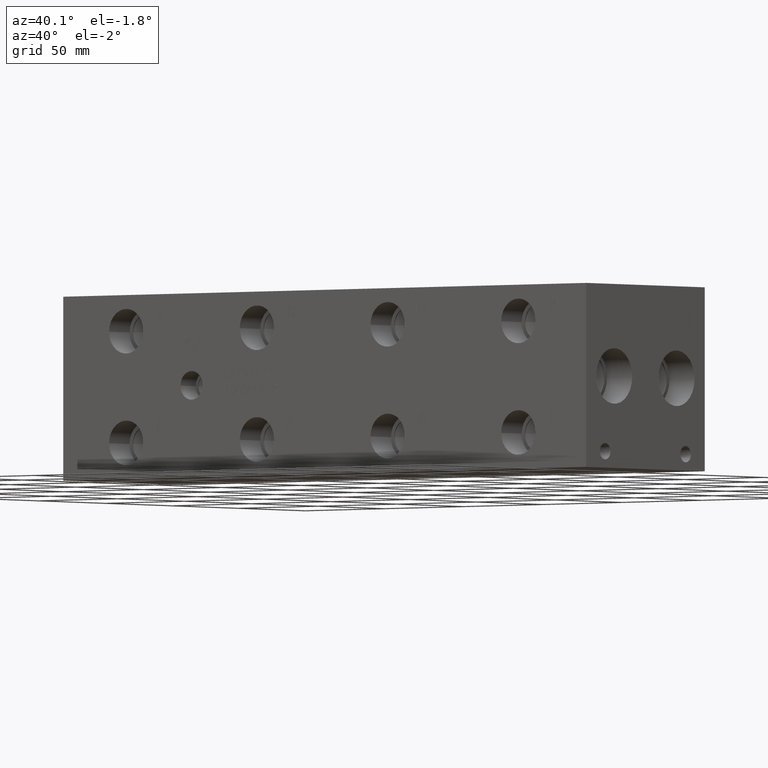
[diagram: clean part render]
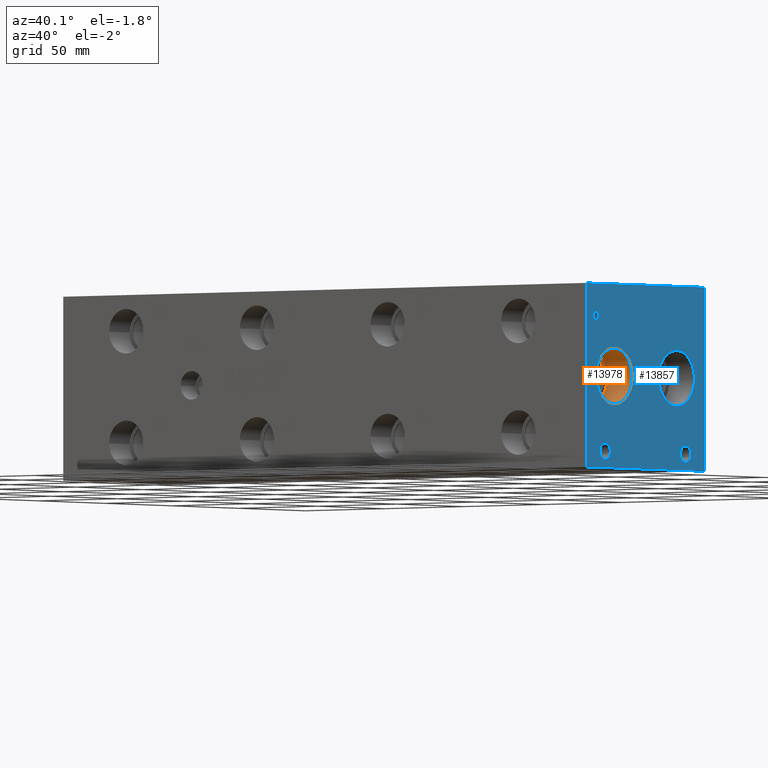
[diagram: same view with the hole feature highlighted: cylindrical wall and planar end face, labeled with their STEP entity ids]
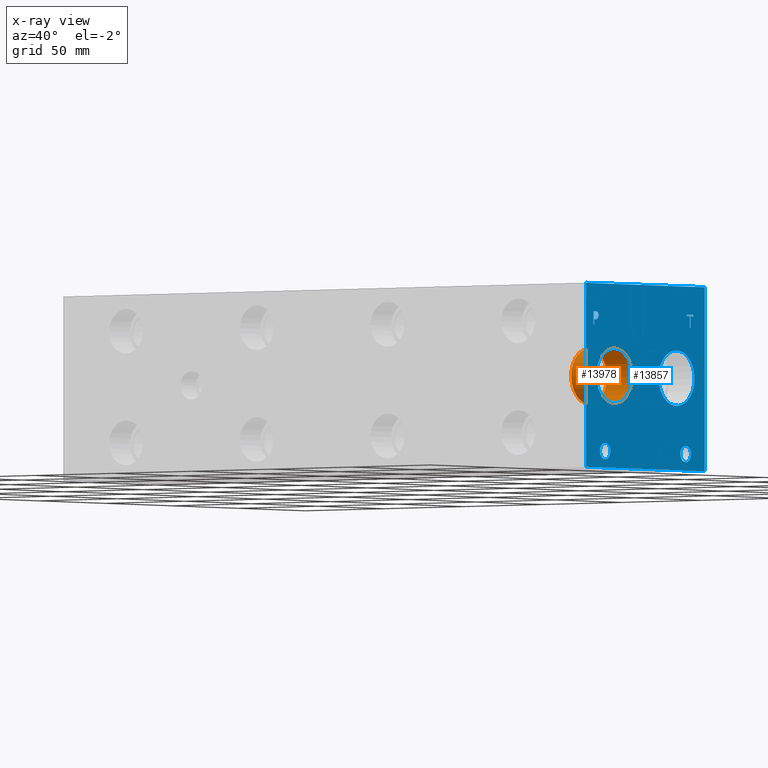
[diagram: x-ray of the same camera — body ghosted, the hole faces saturated]
A machine part, auxiliary view. The highlighted faces form one hole feature of diameter 26.924 mm: the cylindrical wall (entity #13978, orange) and its adjacent planar end face (entity #13857, blue) — they share a circular edge in the B-rep.
The next image is the same camera in x-ray (body ghosted, the hole faces saturated) — the bore reads through the body.
Wall:
#24=CYLINDRICAL_SURFACE('',#14608,13.462);
#339=CIRCLE('',#14480,13.462);
#340=CIRCLE('',#14481,13.462);
#380=CIRCLE('',#14605,13.462);
#381=CIRCLE('',#14606,13.462);
#1678=FACE_OUTER_BOUND('',#2483,.T.);
#2483=EDGE_LOOP('',(#11692,#11693,#11694,#11695,#11696,#11697));
#3868=LINE('',#23488,#5163);
#5163=VECTOR('',#17105,13.462);
#6170=VERTEX_POINT('',#22462);
#6171=VERTEX_POINT('',#22463);
#6355=VERTEX_POINT('',#23481);
#6356=VERTEX_POINT('',#23482);
#7937=EDGE_CURVE('',#6170,#6171,#339,.T.);
#7938=EDGE_CURVE('',#6171,#6170,#340,.T.);
#8219=EDGE_CURVE('',#6355,#6356,#380,.T.);
#8220=EDGE_CURVE('',#6356,#6355,#381,.T.);
#8222=EDGE_CURVE('',#6171,#6356,#3868,.T.);
#11692=ORIENTED_EDGE('',*,*,#7937,.F.);
#11693=ORIENTED_EDGE('',*,*,#7938,.F.);
#11694=ORIENTED_EDGE('',*,*,#8222,.T.);
#11695=ORIENTED_EDGE('',*,*,#8219,.F.);
#11696=ORIENTED_EDGE('',*,*,#8220,.F.);
#11697=ORIENTED_EDGE('',*,*,#8222,.F.);
#13978=ADVANCED_FACE('',(#1678),#24,.F.);
#14480=AXIS2_PLACEMENT_3D('',#22464,#16666,#16667);
#14481=AXIS2_PLACEMENT_3D('',#22465,#16668,#16669);
#14605=AXIS2_PLACEMENT_3D('',#23483,#17097,#17098);
#14606=AXIS2_PLACEMENT_3D('',#23484,#17099,#17100);
#14608=AXIS2_PLACEMENT_3D('',#23487,#17103,#17104);
#16666=DIRECTION('center_axis',(-1.,0.,0.));
#16667=DIRECTION('ref_axis',(0.,1.,0.));
#16668=DIRECTION('center_axis',(-1.,0.,0.));
#16669=DIRECTION('ref_axis',(0.,1.,0.));
#17097=DIRECTION('center_axis',(1.,0.,0.));
#17098=DIRECTION('ref_axis',(0.,1.,0.));
#17099=DIRECTION('center_axis',(1.,0.,0.));
#17100=DIRECTION('ref_axis',(0.,1.,0.));
#17103=DIRECTION('center_axis',(1.,0.,0.));
#17104=DIRECTION('ref_axis',(0.,1.,0.));
#17105=DIRECTION('',(-1.,0.,0.));
#22462=CARTESIAN_POINT('',(330.2,34.544,44.45));
#22463=CARTESIAN_POINT('',(330.2,7.62,44.45));
#22464=CARTESIAN_POINT('Origin',(330.2,21.082,44.45));
#22465=CARTESIAN_POINT('Origin',(330.2,21.082,44.45));
#23481=CARTESIAN_POINT('',(314.3504,34.544,44.45));
#23482=CARTESIAN_POINT('',(314.3504,7.62,44.45));
#23483=CARTESIAN_POINT('Origin',(314.3504,21.082,44.45));
#23484=CARTESIAN_POINT('Origin',(314.3504,21.082,44.45));
#23487=CARTESIAN_POINT('Origin',(322.2752,21.082,44.45));
#23488=CARTESIAN_POINT('',(322.2752,7.62,44.45));
End face:
#337=CIRCLE('',#14478,13.462);
#338=CIRCLE('',#14479,13.462);
#339=CIRCLE('',#14480,13.462);
#340=CIRCLE('',#14481,13.462);
#341=CIRCLE('',#14482,3.9624);
#342=CIRCLE('',#14483,3.9624);
#343=CIRCLE('',#14484,3.9624);
#344=CIRCLE('',#14485,3.9624);
#894=B_SPLINE_CURVE_WITH_KNOTS('',2,(#22355,#22356,#22357,#22358),
 .UNSPECIFIED.,.F.,.F.,(3,1,3),(0.,1.,2.),.UNSPECIFIED.);
#896=B_SPLINE_CURVE_WITH_KNOTS('',2,(#22376,#22377,#22378,#22379),
 .UNSPECIFIED.,.F.,.F.,(3,1,3),(0.,1.,2.),.UNSPECIFIED.);
#898=B_SPLINE_CURVE_WITH_KNOTS('',2,(#22425,#22426,#22427,#22428),
 .UNSPECIFIED.,.F.,.F.,(3,1,3),(0.,1.,2.),.UNSPECIFIED.);
#900=B_SPLINE_CURVE_WITH_KNOTS('',2,(#22443,#22444,#22445,#22446),
 .UNSPECIFIED.,.F.,.F.,(3,1,3),(0.,1.,2.),.UNSPECIFIED.);
#1016=FACE_BOUND('',#2338,.T.);
#1017=FACE_BOUND('',#2339,.T.);
#1018=FACE_BOUND('',#2340,.T.);
#1019=FACE_BOUND('',#2341,.T.);
#1020=FACE_BOUND('',#2342,.T.);
#1021=FACE_BOUND('',#2343,.T.);
#1557=FACE_OUTER_BOUND('',#2337,.T.);
#2337=EDGE_LOOP('',(#11077,#11078,#11079,#11080));
#2338=EDGE_LOOP('',(#11081,#11082,#11083,#11084,#11085,#11086,#11087,#11088));
#2339=EDGE_LOOP('',(#11089,#11090));
#2340=EDGE_LOOP('',(#11091,#11092));
#2341=EDGE_LOOP('',(#11093,#11094));
#2342=EDGE_LOOP('',(#11095,#11096));
#2343=EDGE_LOOP('',(#11097,#11098,#11099,#11100,#11101,#11102,#11103,#11104,
#11105));
#2724=LINE('',#18051,#4019);
#3604=LINE('',#22156,#4899);
#3608=LINE('',#22164,#4903);
#3611=LINE('',#22170,#4906);
#3614=LINE('',#22176,#4909);
#3617=LINE('',#22182,#4912);
#3620=LINE('',#22188,#4915);
#3623=LINE('',#22194,#4918);
#3626=LINE('',#22199,#4921);
#3668=LINE('',#22388,#4963);
#3671=LINE('',#22394,#4966);
#3674=LINE('',#22400,#4969);
#3677=LINE('',#22406,#4972);
#3680=LINE('',#22412,#4975);
#3684=LINE('',#22454,#4979);
#3685=LINE('',#22456,#4980);
#3686=LINE('',#22457,#4981);
#4019=VECTOR('',#15049,10.);
#4899=VECTOR('',#16525,10.);
#4903=VECTOR('',#16531,10.);
#4906=VECTOR('',#16536,10.);
#4909=VECTOR('',#16541,10.);
#4912=VECTOR('',#16546,10.);
#4915=VECTOR('',#16551,10.);
#4918=VECTOR('',#16556,10.);
#4921=VECTOR('',#16561,10.);
#4963=VECTOR('',#16631,10.);
#4966=VECTOR('',#16636,10.);
#4969=VECTOR('',#16641,10.);
#4972=VECTOR('',#16646,10.);
#4975=VECTOR('',#16651,10.);
#4979=VECTOR('',#16659,10.);
#4980=VECTOR('',#16660,10.);
#4981=VECTOR('',#16661,10.);
#5303=VERTEX_POINT('',#18048);
#5304=VERTEX_POINT('',#18050);
#6102=VERTEX_POINT('',#22154);
#6103=VERTEX_POINT('',#22155);
#6106=VERTEX_POINT('',#22163);
#6108=VERTEX_POINT('',#22169);
#6110=VERTEX_POINT('',#22175);
#6112=VERTEX_POINT('',#22181);
#6114=VERTEX_POINT('',#22187);
#6116=VERTEX_POINT('',#22193);
#6148=VERTEX_POINT('',#22353);
#6149=VERTEX_POINT('',#22354);
#6152=VERTEX_POINT('',#22375);
#6154=VERTEX_POINT('',#22387);
#6156=VERTEX_POINT('',#22393);
#6158=VERTEX_POINT('',#22399);
#6160=VERTEX_POINT('',#22405);
#6162=VERTEX_POINT('',#22411);
#6164=VERTEX_POINT('',#22424);
#6166=VERTEX_POINT('',#22453);
#6167=VERTEX_POINT('',#22455);
#6168=VERTEX_POINT('',#22458);
#6169=VERTEX_POINT('',#22459);
#6170=VERTEX_POINT('',#22462);
#6171=VERTEX_POINT('',#22463);
#6172=VERTEX_POINT('',#22466);
#6173=VERTEX_POINT('',#22467);
#6174=VERTEX_POINT('',#22470);
#6175=VERTEX_POINT('',#22471);
#6666=EDGE_CURVE('',#5303,#5304,#2724,.T.);
#7836=EDGE_CURVE('',#6102,#6103,#3604,.T.);
#7840=EDGE_CURVE('',#6106,#6102,#3608,.T.);
#7843=EDGE_CURVE('',#6108,#6106,#3611,.T.);
#7846=EDGE_CURVE('',#6110,#6108,#3614,.T.);
#7849=EDGE_CURVE('',#6112,#6110,#3617,.T.);
#7852=EDGE_CURVE('',#6114,#6112,#3620,.T.);
#7855=EDGE_CURVE('',#6116,#6114,#3623,.T.);
#7858=EDGE_CURVE('',#6103,#6116,#3626,.T.);
#7905=EDGE_CURVE('',#6148,#6149,#894,.T.);
#7909=EDGE_CURVE('',#6152,#6148,#896,.T.);
#7912=EDGE_CURVE('',#6154,#6152,#3668,.T.);
#7915=EDGE_CURVE('',#6156,#6154,#3671,.T.);
#7918=EDGE_CURVE('',#6158,#6156,#3674,.T.);
#7921=EDGE_CURVE('',#6160,#6158,#3677,.T.);
#7924=EDGE_CURVE('',#6162,#6160,#3680,.T.);
#7927=EDGE_CURVE('',#6164,#6162,#898,.T.);
#7930=EDGE_CURVE('',#6149,#6164,#900,.T.);
#7932=EDGE_CURVE('',#5303,#6166,#3684,.T.);
#7933=EDGE_CURVE('',#6166,#6167,#3685,.T.);
#7934=EDGE_CURVE('',#5304,#6167,#3686,.T.);
#7935=EDGE_CURVE('',#6168,#6169,#337,.T.);
#7936=EDGE_CURVE('',#6169,#6168,#338,.T.);
#7937=EDGE_CURVE('',#6170,#6171,#339,.T.);
#7938=EDGE_CURVE('',#6171,#6170,#340,.T.);
#7939=EDGE_CURVE('',#6172,#6173,#341,.T.);
#7940=EDGE_CURVE('',#6173,#6172,#342,.T.);
#7941=EDGE_CURVE('',#6174,#6175,#343,.T.);
#7942=EDGE_CURVE('',#6175,#6174,#344,.T.);
#11077=ORIENTED_EDGE('',*,*,#7932,.T.);
#11078=ORIENTED_EDGE('',*,*,#7933,.T.);
#11079=ORIENTED_EDGE('',*,*,#7934,.F.);
#11080=ORIENTED_EDGE('',*,*,#6666,.F.);
#11081=ORIENTED_EDGE('',*,*,#7836,.T.);
#11082=ORIENTED_EDGE('',*,*,#7858,.T.);
#11083=ORIENTED_EDGE('',*,*,#7855,.T.);
#11084=ORIENTED_EDGE('',*,*,#7852,.T.);
#11085=ORIENTED_EDGE('',*,*,#7849,.T.);
#11086=ORIENTED_EDGE('',*,*,#7846,.T.);
#11087=ORIENTED_EDGE('',*,*,#7843,.T.);
#11088=ORIENTED_EDGE('',*,*,#7840,.T.);
#11089=ORIENTED_EDGE('',*,*,#7935,.T.);
#11090=ORIENTED_EDGE('',*,*,#7936,.T.);
#11091=ORIENTED_EDGE('',*,*,#7937,.T.);
#11092=ORIENTED_EDGE('',*,*,#7938,.T.);
#11093=ORIENTED_EDGE('',*,*,#7939,.T.);
#11094=ORIENTED_EDGE('',*,*,#7940,.T.);
#11095=ORIENTED_EDGE('',*,*,#7941,.T.);
#11096=ORIENTED_EDGE('',*,*,#7942,.T.);
#11097=ORIENTED_EDGE('',*,*,#7905,.T.);
#11098=ORIENTED_EDGE('',*,*,#7930,.T.);
#11099=ORIENTED_EDGE('',*,*,#7927,.T.);
#11100=ORIENTED_EDGE('',*,*,#7924,.T.);
#11101=ORIENTED_EDGE('',*,*,#7921,.T.);
#11102=ORIENTED_EDGE('',*,*,#7918,.T.);
#11103=ORIENTED_EDGE('',*,*,#7915,.T.);
#11104=ORIENTED_EDGE('',*,*,#7912,.T.);
#11105=ORIENTED_EDGE('',*,*,#7909,.T.);
#12765=PLANE('',#14477);
#13857=ADVANCED_FACE('',(#1557,#1016,#1017,#1018,#1019,#1020,#1021),#12765,
 .T.);
#14477=AXIS2_PLACEMENT_3D('',#22452,#16657,#16658);
#14478=AXIS2_PLACEMENT_3D('',#22460,#16662,#16663);
#14479=AXIS2_PLACEMENT_3D('',#22461,#16664,#16665);
#14480=AXIS2_PLACEMENT_3D('',#22464,#16666,#16667);
#14481=AXIS2_PLACEMENT_3D('',#22465,#16668,#16669);
#14482=AXIS2_PLACEMENT_3D('',#22468,#16670,#16671);
#14483=AXIS2_PLACEMENT_3D('',#22469,#16672,#16673);
#14484=AXIS2_PLACEMENT_3D('',#22472,#16674,#16675);
#14485=AXIS2_PLACEMENT_3D('',#22473,#16676,#16677);
#15049=DIRECTION('',(0.,0.,1.));
#16525=DIRECTION('',(0.,-1.,0.));
#16531=DIRECTION('',(0.,0.,-1.));
#16536=DIRECTION('',(0.,-1.,0.));
#16541=DIRECTION('',(0.,0.,-1.));
#16546=DIRECTION('',(0.,1.,0.));
#16551=DIRECTION('',(0.,0.,1.));
#16556=DIRECTION('',(0.,-1.,0.));
#16561=DIRECTION('',(0.,0.,1.));
#16631=DIRECTION('',(0.,1.,0.));
#16636=DIRECTION('',(0.,0.,1.));
#16641=DIRECTION('',(0.,-1.,0.));
#16646=DIRECTION('',(0.,0.,-1.));
#16651=DIRECTION('',(0.,-1.,0.));
#16657=DIRECTION('center_axis',(1.,0.,0.));
#16658=DIRECTION('ref_axis',(0.,1.,0.));
#16659=DIRECTION('',(0.,1.,0.));
#16660=DIRECTION('',(0.,0.,1.));
#16661=DIRECTION('',(0.,1.,0.));
#16662=DIRECTION('center_axis',(-1.,0.,0.));
#16663=DIRECTION('ref_axis',(0.,1.,0.));
#16664=DIRECTION('center_axis',(-1.,0.,0.));
#16665=DIRECTION('ref_axis',(0.,1.,0.));
#16666=DIRECTION('center_axis',(-1.,0.,0.));
#16667=DIRECTION('ref_axis',(0.,1.,0.));
#16668=DIRECTION('center_axis',(-1.,0.,0.));
#16669=DIRECTION('ref_axis',(0.,1.,0.));
#16670=DIRECTION('center_axis',(-1.,0.,0.));
#16671=DIRECTION('ref_axis',(0.,1.,0.));
#16672=DIRECTION('center_axis',(-1.,0.,0.));
#16673=DIRECTION('ref_axis',(0.,1.,0.));
#16674=DIRECTION('center_axis',(-1.,0.,0.));
#16675=DIRECTION('ref_axis',(0.,1.,0.));
#16676=DIRECTION('center_axis',(-1.,0.,0.));
#16677=DIRECTION('ref_axis',(0.,1.,0.));
#18048=CARTESIAN_POINT('',(330.2,0.,0.));
#18050=CARTESIAN_POINT('',(330.2,0.,88.9));
#18051=CARTESIAN_POINT('',(330.2,0.,0.));
#22154=CARTESIAN_POINT('',(330.2,78.375415271453,69.05625));
#22155=CARTESIAN_POINT('',(330.2,77.5314930799135,69.05625));
#22156=CARTESIAN_POINT('',(330.2,39.1877076357265,69.05625));
#22163=CARTESIAN_POINT('',(330.2,78.375415271453,74.6549533194816));
#22164=CARTESIAN_POINT('',(330.2,78.375415271453,37.3274766597408));
#22169=CARTESIAN_POINT('',(330.2,80.5058042183881,74.6549533194816));
#22170=CARTESIAN_POINT('',(330.2,40.252902109194,74.6549533194816));
#22175=CARTESIAN_POINT('',(330.2,80.5058042183881,75.4062499046326));
#22176=CARTESIAN_POINT('',(330.2,80.5058042183881,37.7031249523163));
#22181=CARTESIAN_POINT('',(330.2,75.4011041329784,75.4062499046326));
#22182=CARTESIAN_POINT('',(330.2,37.7005520664892,75.4062499046326));
#22187=CARTESIAN_POINT('',(330.2,75.4011041329784,74.6549533194816));
#22188=CARTESIAN_POINT('',(330.2,75.4011041329784,37.3274766597408));
#22193=CARTESIAN_POINT('',(330.2,77.5314930799135,74.6549533194816));
#22194=CARTESIAN_POINT('',(330.2,38.7657465399567,74.6549533194816));
#22199=CARTESIAN_POINT('',(330.2,77.5314930799135,34.528125));
#22353=CARTESIAN_POINT('',(330.2,8.66306720235939,75.0100181439707));
#22354=CARTESIAN_POINT('',(330.2,9.41950965453199,73.491987372604));
#22355=CARTESIAN_POINT('Ctrl Pts',(330.2,8.66306720235939,75.0100181439707));
#22356=CARTESIAN_POINT('Ctrl Pts',(330.2,9.01813202684857,74.7681623939564));
#22357=CARTESIAN_POINT('Ctrl Pts',(330.2,9.41950965453199,74.0220116758269));
#22358=CARTESIAN_POINT('Ctrl Pts',(330.2,9.41950965453199,73.491987372604));
#22375=CARTESIAN_POINT('',(330.2,7.0009521543883,75.4062499046326));
#22376=CARTESIAN_POINT('Ctrl Pts',(330.2,7.0009521543883,75.4062499046326));
#22377=CARTESIAN_POINT('Ctrl Pts',(330.2,7.56699752676236,75.4062499046326));
#22378=CARTESIAN_POINT('Ctrl Pts',(330.2,8.35946104808603,75.2209986918556));
#22379=CARTESIAN_POINT('Ctrl Pts',(330.2,8.66306720235939,75.0100181439707));
#22387=CARTESIAN_POINT('',(330.2,5.40573337769779,75.4062499046326));
#22388=CARTESIAN_POINT('',(330.2,2.70286668884889,75.4062499046326));
#22393=CARTESIAN_POINT('',(330.2,5.40573337769779,69.05625));
#22394=CARTESIAN_POINT('',(330.2,5.40573337769779,34.528125));
#22399=CARTESIAN_POINT('',(330.2,6.24965556923729,69.05625));
#22400=CARTESIAN_POINT('',(330.2,3.12482778461864,69.05625));
#22405=CARTESIAN_POINT('',(330.2,6.24965556923729,71.4233488299279));
#22406=CARTESIAN_POINT('',(330.2,6.24965556923729,35.7116744149639));
#22411=CARTESIAN_POINT('',(330.2,6.96493108523723,71.4233488299279));
#22412=CARTESIAN_POINT('',(330.2,3.48246554261861,71.4233488299279));
#22424=CARTESIAN_POINT('',(330.2,8.8637560162011,72.0820198086904));
#22425=CARTESIAN_POINT('Ctrl Pts',(330.2,8.8637560162011,72.0820198086904));
#22426=CARTESIAN_POINT('Ctrl Pts',(330.2,8.53442052681983,71.7578301863307));
#22427=CARTESIAN_POINT('Ctrl Pts',(330.2,7.64418553208609,71.4233488299279));
#22428=CARTESIAN_POINT('Ctrl Pts',(330.2,6.96493108523723,71.4233488299279));
#22443=CARTESIAN_POINT('Ctrl Pts',(330.2,9.41950965453199,73.491987372604));
#22444=CARTESIAN_POINT('Ctrl Pts',(330.2,9.41950965453199,73.0803180108774));
#22445=CARTESIAN_POINT('Ctrl Pts',(330.2,9.1261952343018,72.3393131597695));
#22446=CARTESIAN_POINT('Ctrl Pts',(330.2,8.8637560162011,72.0820198086904));
#22452=CARTESIAN_POINT('Origin',(330.2,0.,0.));
#22453=CARTESIAN_POINT('',(330.2,88.9,0.));
#22454=CARTESIAN_POINT('',(330.2,0.,0.));
#22455=CARTESIAN_POINT('',(330.2,88.9,88.9));
#22456=CARTESIAN_POINT('',(330.2,88.9,0.));
#22457=CARTESIAN_POINT('',(330.2,0.,88.9));
#22458=CARTESIAN_POINT('',(330.2,81.28,44.45));
#22459=CARTESIAN_POINT('',(330.2,54.356,44.45));
#22460=CARTESIAN_POINT('Origin',(330.2,67.818,44.45));
#22461=CARTESIAN_POINT('Origin',(330.2,67.818,44.45));
#22462=CARTESIAN_POINT('',(330.2,34.544,44.45));
#22463=CARTESIAN_POINT('',(330.2,7.62,44.45));
#22464=CARTESIAN_POINT('Origin',(330.2,21.082,44.45));
#22465=CARTESIAN_POINT('Origin',(330.2,21.082,44.45));
#22466=CARTESIAN_POINT('',(330.2,78.5876,7.9248));
#22467=CARTESIAN_POINT('',(330.2,70.6628,7.9248));
#22468=CARTESIAN_POINT('Origin',(330.2,74.6252,7.9248));
#22469=CARTESIAN_POINT('Origin',(330.2,74.6252,7.9248));
#22470=CARTESIAN_POINT('',(330.2,18.2372,7.9248));
#22471=CARTESIAN_POINT('',(330.2,10.3124,7.9248));
#22472=CARTESIAN_POINT('Origin',(330.2,14.2748,7.9248));
#22473=CARTESIAN_POINT('Origin',(330.2,14.2748,7.9248));